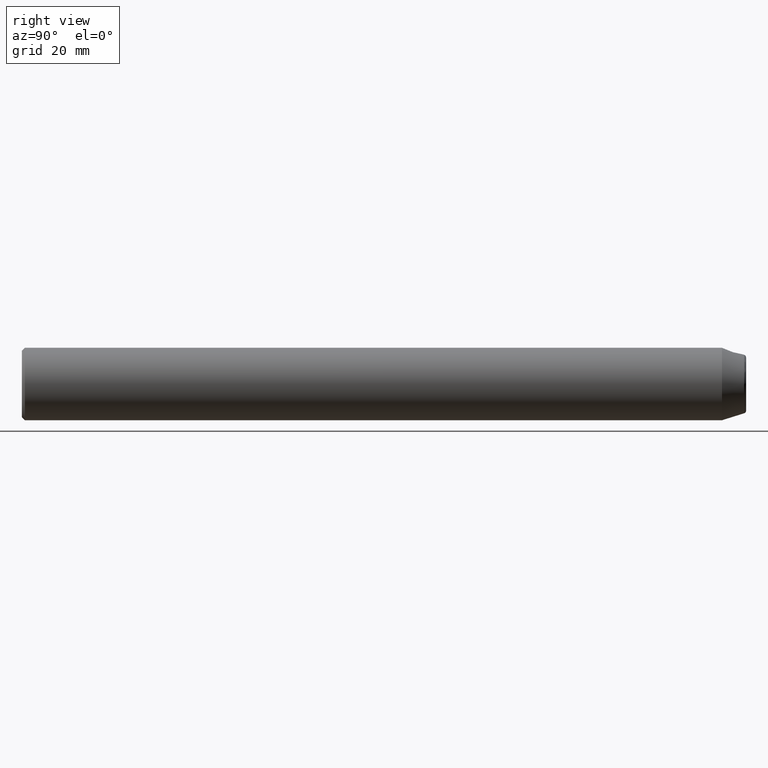
[diagram: clean part render]
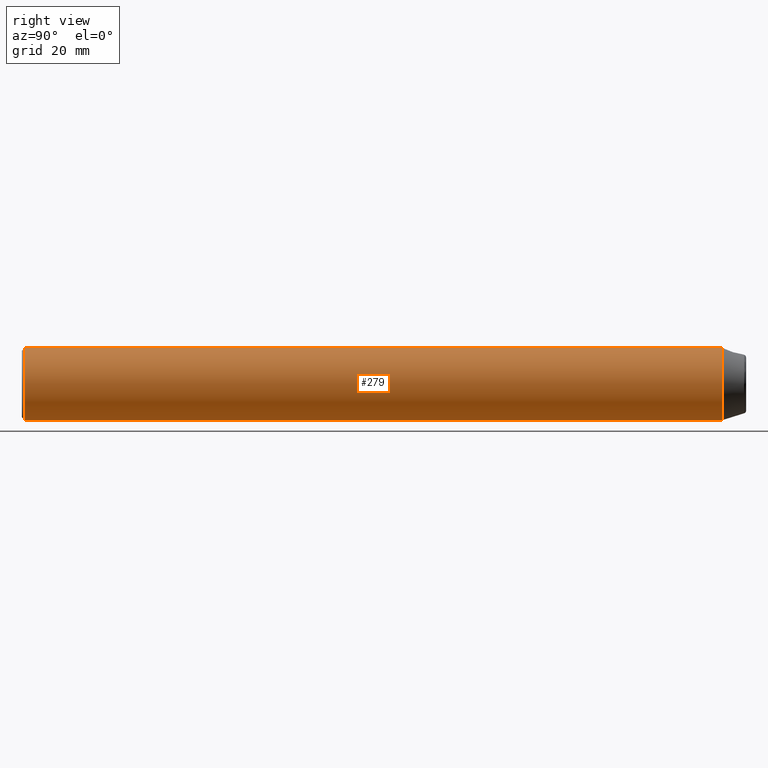
[diagram: same view with one face highlighted and labeled with its STEP entity id]
A machine part, right view. The second image highlights one B-rep face of the part: STEP entity #279.
In plain terms, the highlighted cylindrical surface (bore or boss wall) has radius 6 mm, axis along (-0, -1, -0).
Its self-contained STEP definition (entity closure, byte-faithful):
#11 = CARTESIAN_POINT ( 'NONE',  ( 0.000000000000000000, 0.5000000000000004441, -6.000000000000000888 ) ) ;
#41 = EDGE_CURVE ( 'NONE', #59, #59, #258, .T. ) ;
#59 = VERTEX_POINT ( 'NONE', #89 ) ;
#79 = CYLINDRICAL_SURFACE ( 'NONE', #288, 6.000000000000000888 ) ;
#89 = CARTESIAN_POINT ( 'NONE',  ( 0.000000000000000000, 115.9999999999999858, -6.000000000000000888 ) ) ;
#92 = AXIS2_PLACEMENT_3D ( 'NONE', #182, #221, #223 ) ;
#97 = ORIENTED_EDGE ( 'NONE', *, *, #193, .T. ) ;
#98 = EDGE_LOOP ( 'NONE', ( #97 ) ) ;
#111 = DIRECTION ( 'NONE',  ( 0.000000000000000000, 0.000000000000000000, -1.000000000000000000 ) ) ;
#115 = CARTESIAN_POINT ( 'NONE',  ( 0.000000000000000000, 25.00000000000000000, 0.000000000000000000 ) ) ;
#148 = FACE_OUTER_BOUND ( 'NONE', #98, .T. ) ;
#152 = AXIS2_PLACEMENT_3D ( 'NONE', #216, #169, #163 ) ;
#163 = DIRECTION ( 'NONE',  ( 0.000000000000000000, 0.000000000000000000, -1.000000000000000000 ) ) ;
#169 = DIRECTION ( 'NONE',  ( 0.000000000000000000, 1.000000000000000000, 0.000000000000000000 ) ) ;
#171 = CIRCLE ( 'NONE', #152, 6.000000000000000888 ) ;
#182 = CARTESIAN_POINT ( 'NONE',  ( 0.000000000000000000, 115.9999999999999858, 0.000000000000000000 ) ) ;
#187 = DIRECTION ( 'NONE',  ( -0.000000000000000000, -1.000000000000000000, -0.000000000000000000 ) ) ;
#193 = EDGE_CURVE ( 'NONE', #275, #275, #171, .T. ) ;
#200 = ORIENTED_EDGE ( 'NONE', *, *, #41, .T. ) ;
#216 = CARTESIAN_POINT ( 'NONE',  ( 0.000000000000000000, 0.5000000000000004441, 0.000000000000000000 ) ) ;
#221 = DIRECTION ( 'NONE',  ( -0.000000000000000000, -1.000000000000000000, -0.000000000000000000 ) ) ;
#223 = DIRECTION ( 'NONE',  ( 0.000000000000000000, 0.000000000000000000, -1.000000000000000000 ) ) ;
#224 = EDGE_LOOP ( 'NONE', ( #200 ) ) ;
#238 = FACE_OUTER_BOUND ( 'NONE', #224, .T. ) ;
#258 = CIRCLE ( 'NONE', #92, 6.000000000000000888 ) ;
#275 = VERTEX_POINT ( 'NONE', #11 ) ;
#279 = ADVANCED_FACE ( 'NONE', ( #148, #238 ), #79, .T. ) ;
#288 = AXIS2_PLACEMENT_3D ( 'NONE', #115, #187, #111 ) ;